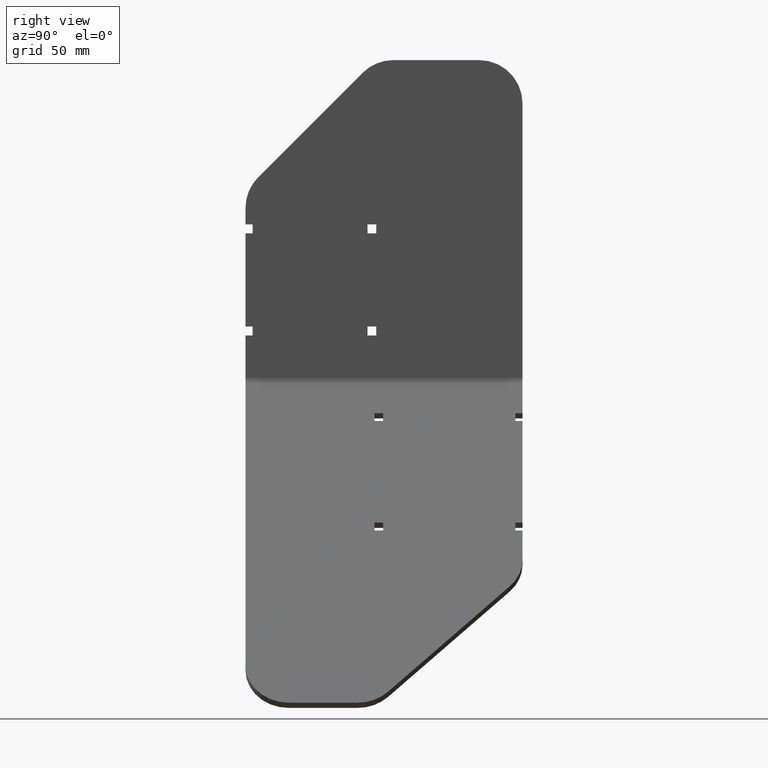
[diagram: clean part render]
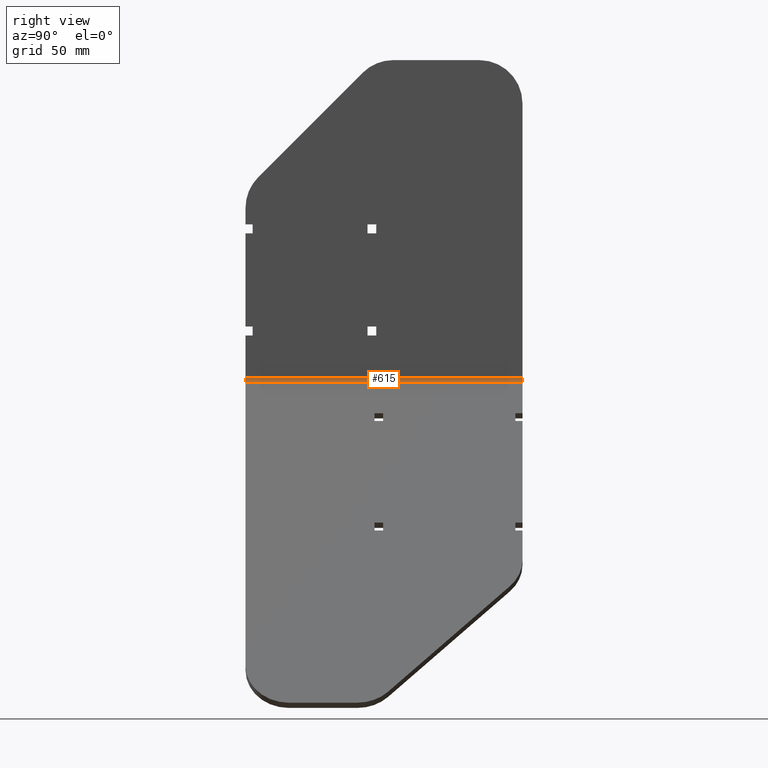
[diagram: same view with one face highlighted and labeled with its STEP entity id]
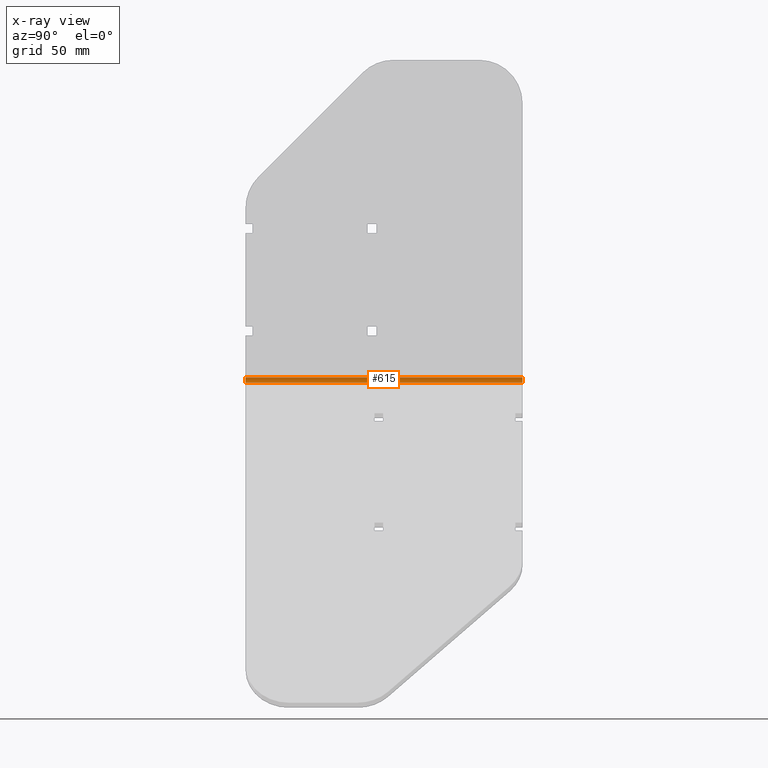
[diagram: x-ray of the same camera — body ghosted, the highlighted face saturated]
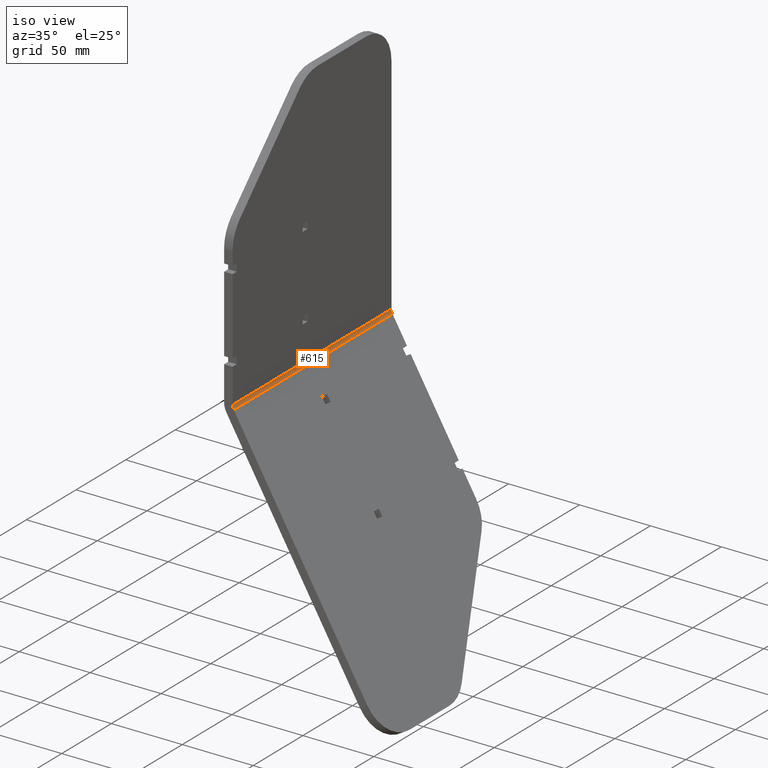
[diagram: same view with one face highlighted and labeled with its STEP entity id]
A machine part, right view. The second image highlights one B-rep face of the part: STEP entity #615.
The next image is the same camera in x-ray: the body ghosted, the highlighted face saturated — about 0% of this face is hidden behind the body in this view.
A second angle (iso view) of the same face is appended — the face is thin or edge-on in the first view.
In plain terms, the highlighted cylindrical surface (edge-blend (fillet) strip) has radius 6 mm, axis along (0, 1, 0).
Its self-contained STEP definition (entity closure, byte-faithful):
#153 = DIRECTION ( 'NONE',  ( 0.000000000000000000, 0.000000000000000000, -1.000000000000000000 ) ) ;
#163 = AXIS2_PLACEMENT_3D ( 'NONE', #716, #437, #153 ) ;
#193 = CARTESIAN_POINT ( 'NONE',  ( -999.9999999999997726, -1249.305262667903662, -633.3923048454130367 ) ) ;
#281 = ORIENTED_EDGE ( 'NONE', *, *, #1664, .T. ) ;
#309 = LINE ( 'NONE', #580, #1769 ) ;
#369 = DIRECTION ( 'NONE',  ( 0.000000000000000000, 0.000000000000000000, 1.000000000000000000 ) ) ;
#437 = DIRECTION ( 'NONE',  ( 0.000000000000000000, 1.000000000000000000, -0.000000000000000000 ) ) ;
#516 = CIRCLE ( 'NONE', #163, 6.000000000000005329 ) ;
#580 = CARTESIAN_POINT ( 'NONE',  ( -999.1961524227064046, -1249.305262667903662, -636.3923048454130367 ) ) ;
#615 = ADVANCED_FACE ( 'NONE', ( #1212 ), #1351, .F. ) ;
#632 = CARTESIAN_POINT ( 'NONE',  ( -999.9999999999997726, -1089.305262667903889, -633.3923048454130367 ) ) ;
#649 = CARTESIAN_POINT ( 'NONE',  ( -993.9999999999997726, -574.8301822523413875, -633.3923048454130367 ) ) ;
#714 = EDGE_CURVE ( 'NONE', #779, #1570, #1720, .T. ) ;
#716 = CARTESIAN_POINT ( 'NONE',  ( -993.9999999999997726, -1089.305262667903889, -633.3923048454130367 ) ) ;
#775 = ORIENTED_EDGE ( 'NONE', *, *, #1360, .F. ) ;
#779 = VERTEX_POINT ( 'NONE', #193 ) ;
#827 = AXIS2_PLACEMENT_3D ( 'NONE', #979, #1633, #1530 ) ;
#843 = ORIENTED_EDGE ( 'NONE', *, *, #714, .F. ) ;
#869 = DIRECTION ( 'NONE',  ( 0.000000000000000000, -1.000000000000000000, 0.000000000000000000 ) ) ;
#979 = CARTESIAN_POINT ( 'NONE',  ( -993.9999999999997726, -1249.305262667903662, -633.3923048454130367 ) ) ;
#998 = AXIS2_PLACEMENT_3D ( 'NONE', #649, #1064, #369 ) ;
#1048 = CARTESIAN_POINT ( 'NONE',  ( -999.1961524227064046, -1089.305262667903889, -636.3923048454130367 ) ) ;
#1064 = DIRECTION ( 'NONE',  ( 0.000000000000000000, 1.000000000000000000, 0.000000000000000000 ) ) ;
#1126 = ORIENTED_EDGE ( 'NONE', *, *, #1612, .T. ) ;
#1212 = FACE_OUTER_BOUND ( 'NONE', #1228, .T. ) ;
#1228 = EDGE_LOOP ( 'NONE', ( #281, #843, #1126, #775 ) ) ;
#1338 = CARTESIAN_POINT ( 'NONE',  ( -999.1961524227064046, -1249.305262667903662, -636.3923048454130367 ) ) ;
#1351 = CYLINDRICAL_SURFACE ( 'NONE', #998, 6.000000000000005329 ) ;
#1360 = EDGE_CURVE ( 'NONE', #1473, #1443, #309, .T. ) ;
#1443 = VERTEX_POINT ( 'NONE', #1338 ) ;
#1473 = VERTEX_POINT ( 'NONE', #1048 ) ;
#1530 = DIRECTION ( 'NONE',  ( 0.000000000000000000, 0.000000000000000000, 1.000000000000000000 ) ) ;
#1570 = VERTEX_POINT ( 'NONE', #1658 ) ;
#1602 = CIRCLE ( 'NONE', #827, 6.000000000000005329 ) ;
#1612 = EDGE_CURVE ( 'NONE', #779, #1443, #1602, .T. ) ;
#1633 = DIRECTION ( 'NONE',  ( -0.000000000000000000, -1.000000000000000000, -0.000000000000000000 ) ) ;
#1658 = CARTESIAN_POINT ( 'NONE',  ( -999.9999999999997726, -1089.305262667903889, -633.3923048454130367 ) ) ;
#1664 = EDGE_CURVE ( 'NONE', #1473, #1570, #516, .T. ) ;
#1679 = VECTOR ( 'NONE', #1710, 1000.000000000000000 ) ;
#1710 = DIRECTION ( 'NONE',  ( -0.000000000000000000, 1.000000000000000000, -0.000000000000000000 ) ) ;
#1720 = LINE ( 'NONE', #632, #1679 ) ;
#1769 = VECTOR ( 'NONE', #869, 1000.000000000000000 ) ;